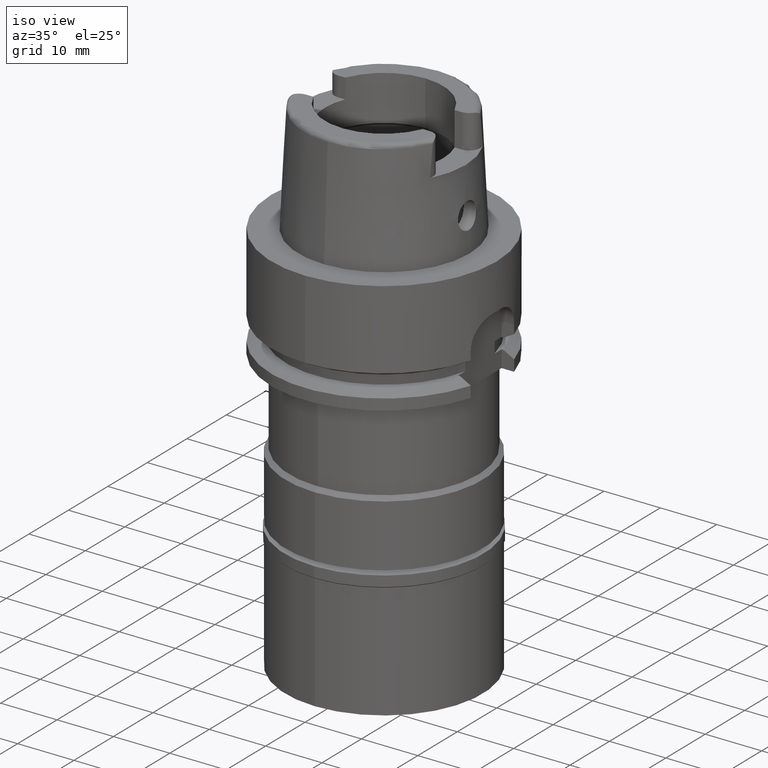
[diagram: clean part render]
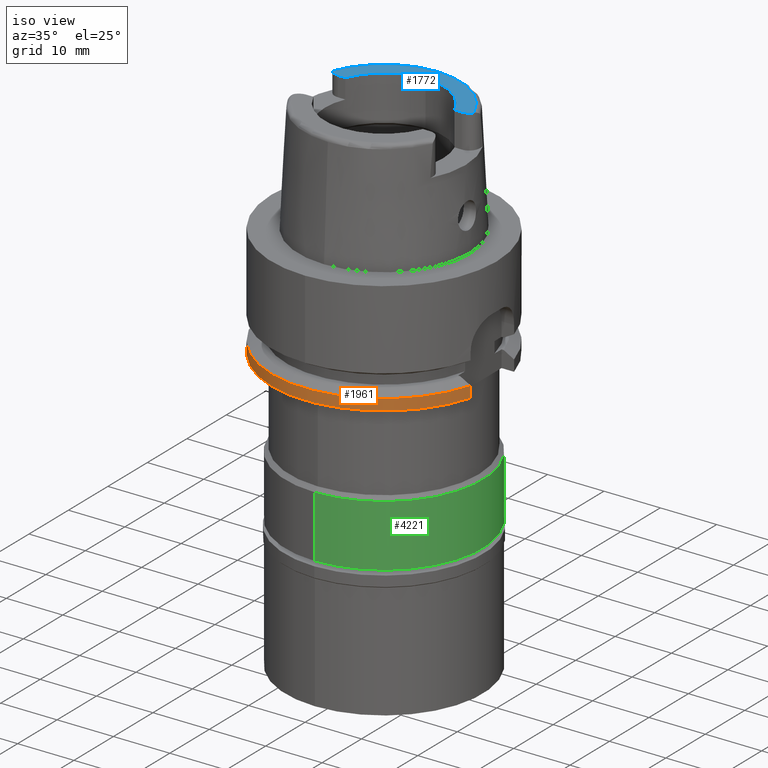
[diagram: same view with three faces highlighted in distinct colors, each labeled with its STEP entity id]
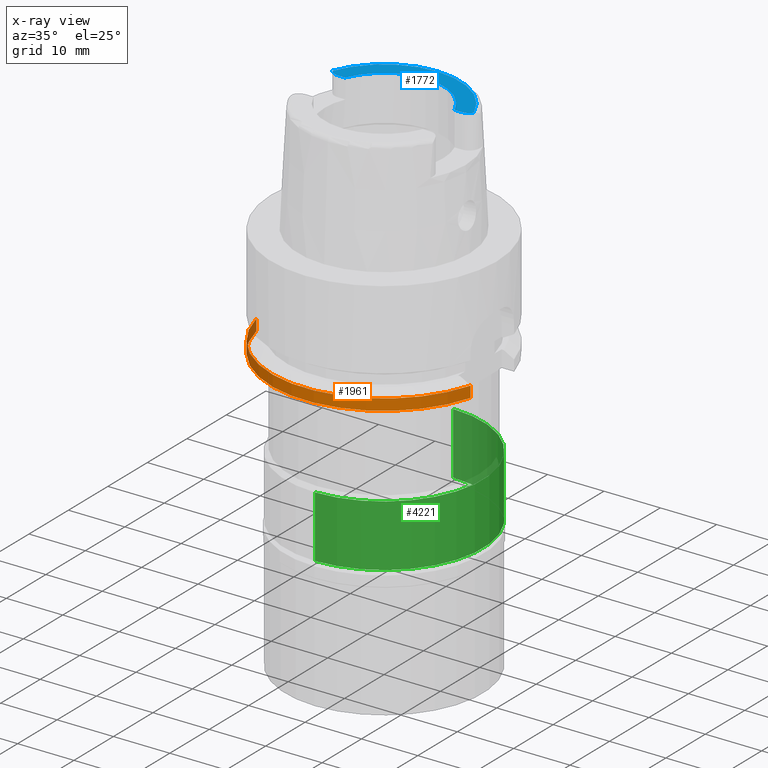
[diagram: x-ray of the same camera — body ghosted, the three highlighted faces saturated]
A machine part, iso view with three faces highlighted in distinct colors.
The next image is the same camera in x-ray (body ghosted, the three faces saturated) — at least one of them is partly hidden behind the body in this view.
Their STEP definitions:

[orange] entity #1961 — the highlighted cylindrical surface (partial cylindrical patch) has radius 20 mm, axis along (0, 0, -1).
#16 = CARTESIAN_POINT ( 'NONE',  ( -19.48717526991000071, -4.500000000000000000, -20.00000000000000000 ) ) ;
#266 = DIRECTION ( 'NONE',  ( 0.0000000000000000000, 0.0000000000000000000, 1.000000000000000000 ) ) ;
#268 = ORIENTED_EDGE ( 'NONE', *, *, #4646, .F. ) ;
#356 = DIRECTION ( 'NONE',  ( 0.0000000000000000000, 0.0000000000000000000, -1.000000000000000000 ) ) ;
#377 = ORIENTED_EDGE ( 'NONE', *, *, #1616, .T. ) ;
#429 = VERTEX_POINT ( 'NONE', #5313 ) ;
#715 = EDGE_LOOP ( 'NONE', ( #3167, #4356, #268, #377 ) ) ;
#736 = EDGE_CURVE ( 'NONE', #429, #3869, #2197, .T. ) ;
#1044 = AXIS2_PLACEMENT_3D ( 'NONE', #1091, #266, #1599 ) ;
#1091 = CARTESIAN_POINT ( 'NONE',  ( 0.0000000000000000000, 1.520582698161000137E-14, -20.00000000000000000 ) ) ;
#1357 = LINE ( 'NONE', #5189, #1486 ) ;
#1422 = EDGE_CURVE ( 'NONE', #429, #4149, #4579, .T. ) ;
#1486 = VECTOR ( 'NONE', #2221, 999.9999999999998863 ) ;
#1599 = DIRECTION ( 'NONE',  ( 0.0000000000000000000, -1.000000000000000000, 0.0000000000000000000 ) ) ;
#1616 = EDGE_CURVE ( 'NONE', #4627, #4149, #1773, .T. ) ;
#1629 = CARTESIAN_POINT ( 'NONE',  ( 0.0000000000000000000, 1.520582698161000137E-14, 24.16499999999999915 ) ) ;
#1773 = CIRCLE ( 'NONE', #3872, 20.00000000000000355 ) ;
#1961 = ADVANCED_FACE ( 'NONE', ( #2237 ), #3483, .T. ) ;
#2197 = CIRCLE ( 'NONE', #1044, 20.00000000000000000 ) ;
#2221 = DIRECTION ( 'NONE',  ( 6.973435882141768749E-08, 2.438013356249920197E-07, -0.9999999999999679146 ) ) ;
#2237 = FACE_OUTER_BOUND ( 'NONE', #715, .T. ) ;
#2270 = DIRECTION ( 'NONE',  ( 0.0000000000000000000, 0.0000000000000000000, -1.000000000000000000 ) ) ;
#3167 = ORIENTED_EDGE ( 'NONE', *, *, #1422, .F. ) ;
#3419 = VECTOR ( 'NONE', #3782, 1000.000000000000000 ) ;
#3483 = CYLINDRICAL_SURFACE ( 'NONE', #3878, 20.00000000000000000 ) ;
#3782 = DIRECTION ( 'NONE',  ( 2.907831857272000026E-13, 1.130823500050000047E-13, 1.000000000000000000 ) ) ;
#3869 = VERTEX_POINT ( 'NONE', #3912 ) ;
#3872 = AXIS2_PLACEMENT_3D ( 'NONE', #5241, #2270, #4823 ) ;
#3878 = AXIS2_PLACEMENT_3D ( 'NONE', #1629, #356, #4574 ) ;
#3912 = CARTESIAN_POINT ( 'NONE',  ( 19.22888452303000051, -5.500000000000000000, -20.00000000000000000 ) ) ;
#4149 = VERTEX_POINT ( 'NONE', #4900 ) ;
#4330 = CARTESIAN_POINT ( 'NONE',  ( 19.22888452303000051, -5.499999999998999911, -18.02072594216000212 ) ) ;
#4356 = ORIENTED_EDGE ( 'NONE', *, *, #736, .T. ) ;
#4574 = DIRECTION ( 'NONE',  ( 0.0000000000000000000, -1.000000000000000000, 0.0000000000000000000 ) ) ;
#4579 = LINE ( 'NONE', #16, #3419 ) ;
#4627 = VERTEX_POINT ( 'NONE', #4330 ) ;
#4646 = EDGE_CURVE ( 'NONE', #4627, #3869, #1357, .T. ) ;
#4823 = DIRECTION ( 'NONE',  ( 0.9614442261514726251, -0.2749999999999924727, 0.0000000000000000000 ) ) ;
#4900 = CARTESIAN_POINT ( 'NONE',  ( -19.48717526991000071, -4.499999999998999911, -18.02072594216000212 ) ) ;
#5189 = CARTESIAN_POINT ( 'NONE',  ( 19.22888438500999797, -5.500000482549000758, -18.02072998582000096 ) ) ;
#5241 = CARTESIAN_POINT ( 'NONE',  ( 0.0000000000000000000, 1.010206699502999904E-14, -18.02072594216000212 ) ) ;
#5313 = CARTESIAN_POINT ( 'NONE',  ( -19.48717526991000071, -4.500000000000000000, -20.00000000000000000 ) ) ;

[blue] entity #1772 — the highlighted planar face has unit normal (0, 0, -1).
#77 = AXIS2_PLACEMENT_3D ( 'NONE', #3993, #246, #722 ) ;
#104 = CIRCLE ( 'NONE', #1152, 1.880000000000000115 ) ;
#125 = DIRECTION ( 'NONE',  ( 0.0000000000000000000, 0.0000000000000000000, -1.000000000000000000 ) ) ;
#180 = CARTESIAN_POINT ( 'NONE',  ( 11.00000000000000000, 5.904999999999999361, 20.00000000000000000 ) ) ;
#246 = DIRECTION ( 'NONE',  ( 0.0000000000000000000, 0.0000000000000000000, 1.000000000000000000 ) ) ;
#255 = AXIS2_PLACEMENT_3D ( 'NONE', #2771, #4113, #2007 ) ;
#443 = VERTEX_POINT ( 'NONE', #4069 ) ;
#453 = CARTESIAN_POINT ( 'NONE',  ( 11.00000000000000000, 4.025000000000000355, 20.00000000000000000 ) ) ;
#643 = CARTESIAN_POINT ( 'NONE',  ( 0.0000000000000000000, 1.520582698161000137E-14, 20.00000000000000000 ) ) ;
#722 = DIRECTION ( 'NONE',  ( 0.9236100668331782559, 0.3833333333332911153, 0.0000000000000000000 ) ) ;
#896 = ORIENTED_EDGE ( 'NONE', *, *, #3908, .T. ) ;
#1021 = VERTEX_POINT ( 'NONE', #3897 ) ;
#1056 = DIRECTION ( 'NONE',  ( 0.0000000000000000000, 0.0000000000000000000, -1.000000000000000000 ) ) ;
#1121 = VECTOR ( 'NONE', #5264, 1000.000000000000000 ) ;
#1137 = CIRCLE ( 'NONE', #4223, 10.50000000000000000 ) ;
#1152 = AXIS2_PLACEMENT_3D ( 'NONE', #180, #1056, #3899 ) ;
#1160 = DIRECTION ( 'NONE',  ( 0.0000000000000000000, 0.0000000000000000000, -1.000000000000000000 ) ) ;
#1220 = EDGE_CURVE ( 'NONE', #1021, #1298, #3958, .T. ) ;
#1253 = ORIENTED_EDGE ( 'NONE', *, *, #2470, .F. ) ;
#1293 = ORIENTED_EDGE ( 'NONE', *, *, #1220, .F. ) ;
#1298 = VERTEX_POINT ( 'NONE', #4946 ) ;
#1350 = LINE ( 'NONE', #2161, #1652 ) ;
#1652 = VECTOR ( 'NONE', #5181, 1000.000000000000000 ) ;
#1703 = CARTESIAN_POINT ( 'NONE',  ( 9.697905701747998819, 4.025000000000000355, 20.00000000000000000 ) ) ;
#1772 = ADVANCED_FACE ( 'NONE', ( #1945 ), #3637, .F. ) ;
#1843 = ORIENTED_EDGE ( 'NONE', *, *, #4414, .F. ) ;
#1945 = FACE_OUTER_BOUND ( 'NONE', #2712, .T. ) ;
#2007 = DIRECTION ( 'NONE',  ( 0.001485959642573941777, 0.9999988959613608230, 0.0000000000000000000 ) ) ;
#2136 = CIRCLE ( 'NONE', #4317, 1.879999999999999671 ) ;
#2161 = CARTESIAN_POINT ( 'NONE',  ( 9.697905701747998819, 4.025000000000000355, 20.00000000000000000 ) ) ;
#2241 = CARTESIAN_POINT ( 'NONE',  ( 0.0000000000000000000, 10.50000000000000000, 20.00000000000000000 ) ) ;
#2305 = DIRECTION ( 'NONE',  ( 0.0000000000000000000, 0.0000000000000000000, 1.000000000000000000 ) ) ;
#2339 = VERTEX_POINT ( 'NONE', #2942 ) ;
#2431 = EDGE_CURVE ( 'NONE', #1298, #2970, #104, .T. ) ;
#2470 = EDGE_CURVE ( 'NONE', #443, #1021, #2136, .T. ) ;
#2476 = ORIENTED_EDGE ( 'NONE', *, *, #2431, .F. ) ;
#2667 = DIRECTION ( 'NONE',  ( 0.0000000000000000000, -1.000000000000000000, 0.0000000000000000000 ) ) ;
#2712 = EDGE_LOOP ( 'NONE', ( #1843, #4331, #896, #2476, #1293, #1253, #4756 ) ) ;
#2771 = CARTESIAN_POINT ( 'NONE',  ( 0.0000000000000000000, 1.459778984583999657E-14, 20.00000000000000000 ) ) ;
#2824 = AXIS2_PLACEMENT_3D ( 'NONE', #3277, #1160, #4491 ) ;
#2942 = CARTESIAN_POINT ( 'NONE',  ( -9.697905701747998819, 4.025000000000000355, 20.00000000000000000 ) ) ;
#2970 = VERTEX_POINT ( 'NONE', #453 ) ;
#3104 = VERTEX_POINT ( 'NONE', #1703 ) ;
#3277 = CARTESIAN_POINT ( 'NONE',  ( 0.0000000000000000000, 1.469576158977000060E-14, 20.00000000000000000 ) ) ;
#3572 = CARTESIAN_POINT ( 'NONE',  ( -11.00000000000000000, 4.025000000000000355, 20.00000000000000000 ) ) ;
#3637 = PLANE ( 'NONE',  #2824 ) ;
#3709 = EDGE_CURVE ( 'NONE', #3104, #4005, #4291, .T. ) ;
#3897 = CARTESIAN_POINT ( 'NONE',  ( -12.54148453352999937, 4.828791175990000184, 20.00000000000000000 ) ) ;
#3899 = DIRECTION ( 'NONE',  ( 0.8199385816669358951, -0.5724515021327251096, 0.0000000000000000000 ) ) ;
#3908 = EDGE_CURVE ( 'NONE', #3104, #2970, #1350, .T. ) ;
#3958 = CIRCLE ( 'NONE', #255, 13.43897535254000175 ) ;
#3990 = LINE ( 'NONE', #3572, #1121 ) ;
#3993 = CARTESIAN_POINT ( 'NONE',  ( 0.0000000000000000000, 1.520582698161000137E-14, 20.00000000000000000 ) ) ;
#4005 = VERTEX_POINT ( 'NONE', #2241 ) ;
#4069 = CARTESIAN_POINT ( 'NONE',  ( -11.00000000000000000, 4.025000000000000355, 20.00000000000000000 ) ) ;
#4113 = DIRECTION ( 'NONE',  ( 0.0000000000000000000, 0.0000000000000000000, -1.000000000000000000 ) ) ;
#4193 = EDGE_CURVE ( 'NONE', #443, #2339, #3990, .T. ) ;
#4223 = AXIS2_PLACEMENT_3D ( 'NONE', #643, #2305, #5220 ) ;
#4291 = CIRCLE ( 'NONE', #77, 10.49999999999999822 ) ;
#4317 = AXIS2_PLACEMENT_3D ( 'NONE', #4412, #125, #2667 ) ;
#4331 = ORIENTED_EDGE ( 'NONE', *, *, #3709, .F. ) ;
#4412 = CARTESIAN_POINT ( 'NONE',  ( -11.00000000000000000, 5.904999999999999361, 20.00000000000000000 ) ) ;
#4414 = EDGE_CURVE ( 'NONE', #4005, #2339, #1137, .T. ) ;
#4491 = DIRECTION ( 'NONE',  ( 0.0000000000000000000, -1.000000000000000000, 0.0000000000000000000 ) ) ;
#4756 = ORIENTED_EDGE ( 'NONE', *, *, #4193, .T. ) ;
#4946 = CARTESIAN_POINT ( 'NONE',  ( 12.54148453352999937, 4.828791175991000273, 20.00000000000000000 ) ) ;
#5181 = DIRECTION ( 'NONE',  ( 1.000000000000000000, -1.909922790154000057E-14, 0.0000000000000000000 ) ) ;
#5220 = DIRECTION ( 'NONE',  ( 0.0000000000000000000, 1.000000000000000000, 0.0000000000000000000 ) ) ;
#5264 = DIRECTION ( 'NONE',  ( 1.000000000000000000, 1.841711261934000221E-14, 0.0000000000000000000 ) ) ;

[green] entity #4221 — the highlighted cylindrical surface (partial cylindrical patch) has radius 17.5 mm, axis along (0, 0, -1).
#147 = VERTEX_POINT ( 'NONE', #2280 ) ;
#483 = CYLINDRICAL_SURFACE ( 'NONE', #2107, 17.50000000000000000 ) ;
#525 = CIRCLE ( 'NONE', #1318, 17.50000000000000000 ) ;
#641 = CARTESIAN_POINT ( 'NONE',  ( 0.0000000000000000000, 0.0000000000000000000, -35.70000000000000284 ) ) ;
#834 = DIRECTION ( 'NONE',  ( 0.0000000000000000000, -1.000000000000000000, 0.0000000000000000000 ) ) ;
#846 = ORIENTED_EDGE ( 'NONE', *, *, #1658, .T. ) ;
#922 = ORIENTED_EDGE ( 'NONE', *, *, #3041, .F. ) ;
#1054 = CARTESIAN_POINT ( 'NONE',  ( 0.0000000000000000000, 17.50000000000000000, -35.70000000000000284 ) ) ;
#1133 = VERTEX_POINT ( 'NONE', #1054 ) ;
#1165 = DIRECTION ( 'NONE',  ( 0.0000000000000000000, 1.000000000000000000, 0.0000000000000000000 ) ) ;
#1179 = ORIENTED_EDGE ( 'NONE', *, *, #3332, .T. ) ;
#1318 = AXIS2_PLACEMENT_3D ( 'NONE', #4712, #2220, #3918 ) ;
#1335 = DIRECTION ( 'NONE',  ( 0.0000000000000000000, 0.0000000000000000000, -1.000000000000000000 ) ) ;
#1658 = EDGE_CURVE ( 'NONE', #2025, #4340, #525, .T. ) ;
#1696 = CIRCLE ( 'NONE', #4766, 17.50000000000000000 ) ;
#2025 = VERTEX_POINT ( 'NONE', #4761 ) ;
#2107 = AXIS2_PLACEMENT_3D ( 'NONE', #2176, #4632, #834 ) ;
#2176 = CARTESIAN_POINT ( 'NONE',  ( 0.0000000000000000000, 1.520582698161000137E-14, 24.16499999999999915 ) ) ;
#2220 = DIRECTION ( 'NONE',  ( 0.0000000000000000000, 0.0000000000000000000, 1.000000000000000000 ) ) ;
#2265 = EDGE_CURVE ( 'NONE', #147, #2025, #2530, .T. ) ;
#2280 = CARTESIAN_POINT ( 'NONE',  ( 0.0000000000000000000, -17.50000000000000000, -35.70000000000000284 ) ) ;
#2527 = LINE ( 'NONE', #3369, #4241 ) ;
#2530 = LINE ( 'NONE', #4633, #4667 ) ;
#2918 = CARTESIAN_POINT ( 'NONE',  ( 0.0000000000000000000, 17.50000000000000000, -46.69999999999999574 ) ) ;
#3041 = EDGE_CURVE ( 'NONE', #1133, #4340, #2527, .T. ) ;
#3281 = DIRECTION ( 'NONE',  ( 0.0000000000000000000, 0.0000000000000000000, -1.000000000000000000 ) ) ;
#3332 = EDGE_CURVE ( 'NONE', #1133, #147, #1696, .T. ) ;
#3369 = CARTESIAN_POINT ( 'NONE',  ( 0.0000000000000000000, 17.50000000000000000, -35.70000000000000284 ) ) ;
#3722 = EDGE_LOOP ( 'NONE', ( #1179, #5380, #846, #922 ) ) ;
#3918 = DIRECTION ( 'NONE',  ( 0.0000000000000000000, -1.000000000000000000, 0.0000000000000000000 ) ) ;
#4221 = ADVANCED_FACE ( 'NONE', ( #5116 ), #483, .T. ) ;
#4241 = VECTOR ( 'NONE', #1335, 1000.000000000000000 ) ;
#4257 = DIRECTION ( 'NONE',  ( 0.0000000000000000000, 0.0000000000000000000, -1.000000000000000000 ) ) ;
#4340 = VERTEX_POINT ( 'NONE', #2918 ) ;
#4632 = DIRECTION ( 'NONE',  ( 0.0000000000000000000, 0.0000000000000000000, -1.000000000000000000 ) ) ;
#4633 = CARTESIAN_POINT ( 'NONE',  ( 0.0000000000000000000, -17.50000000000000000, -35.70000000000000284 ) ) ;
#4667 = VECTOR ( 'NONE', #4257, 1000.000000000000000 ) ;
#4712 = CARTESIAN_POINT ( 'NONE',  ( 0.0000000000000000000, 1.520582698161000137E-14, -46.69999999999999574 ) ) ;
#4761 = CARTESIAN_POINT ( 'NONE',  ( 0.0000000000000000000, -17.50000000000000000, -46.69999999999999574 ) ) ;
#4766 = AXIS2_PLACEMENT_3D ( 'NONE', #641, #3281, #1165 ) ;
#5116 = FACE_OUTER_BOUND ( 'NONE', #3722, .T. ) ;
#5380 = ORIENTED_EDGE ( 'NONE', *, *, #2265, .T. ) ;